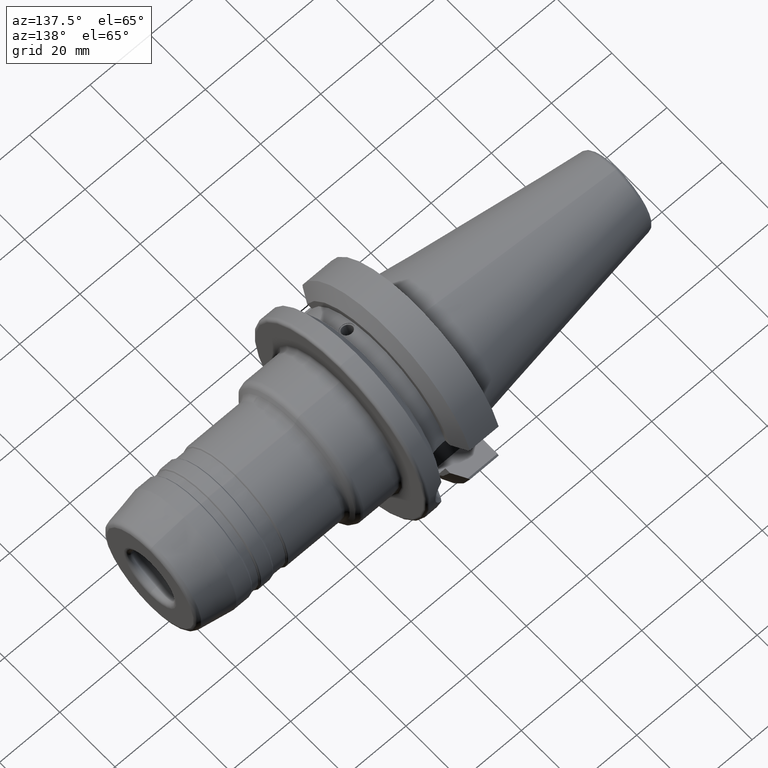
[diagram: clean part render]
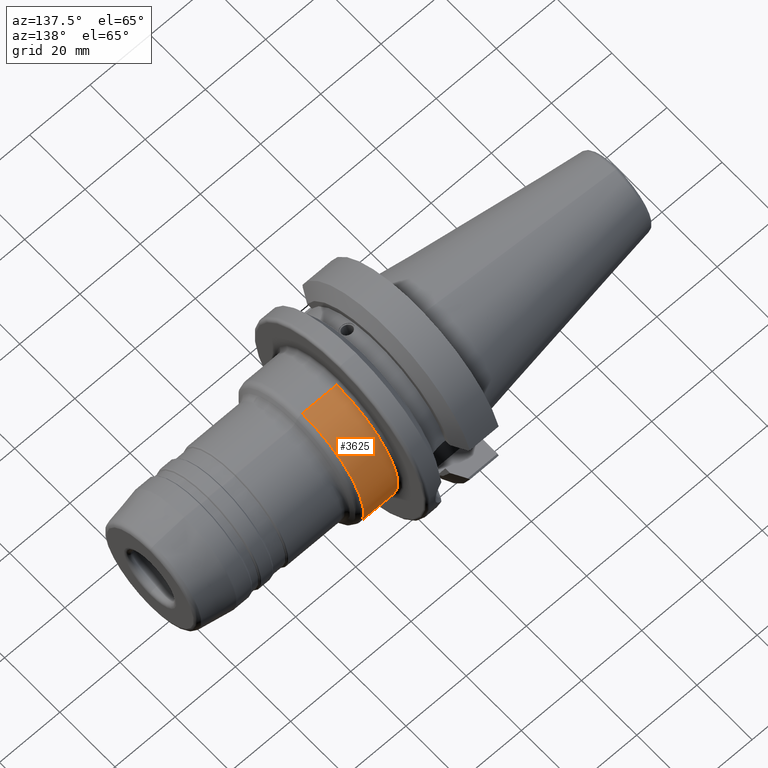
[diagram: same view with one face highlighted and labeled with its STEP entity id]
A machine part, auxiliary view. The second image highlights one B-rep face of the part: STEP entity #3625.
In plain terms, the highlighted cylindrical surface (partial cylindrical patch) has radius 22.25 mm, axis along (1, 0, 0).
Its self-contained STEP definition (entity closure, byte-faithful):
#817=CARTESIAN_POINT('',(2.8E1,0.E0,0.E0));
#818=DIRECTION('',(1.E0,0.E0,0.E0));
#819=DIRECTION('',(0.E0,0.E0,-1.E0));
#820=AXIS2_PLACEMENT_3D('',#817,#818,#819);
#822=CARTESIAN_POINT('',(3.946891108675E1,0.E0,0.E0));
#823=DIRECTION('',(1.E0,0.E0,0.E0));
#824=DIRECTION('',(0.E0,0.E0,-1.E0));
#825=AXIS2_PLACEMENT_3D('',#822,#823,#824);
#1982=DIRECTION('',(-1.E0,-1.241908783715E-12,0.E0));
#1983=VECTOR('',#1982,1.146891108675E1);
#1984=CARTESIAN_POINT('',(3.946891108675E1,0.E0,2.225E1));
#1985=LINE('',#1984,#1983);
#1991=DIRECTION('',(-1.E0,1.241845757405E-12,0.E0));
#1992=VECTOR('',#1991,1.146891108675E1);
#1993=CARTESIAN_POINT('',(3.946891108675E1,0.E0,-2.225E1));
#1994=LINE('',#1993,#1992);
#2293=CARTESIAN_POINT('',(3.946891108675E1,0.E0,-2.225E1));
#2294=VERTEX_POINT('',#2293);
#2353=CARTESIAN_POINT('',(3.946891108675E1,0.E0,2.225E1));
#2354=VERTEX_POINT('',#2353);
#2371=CARTESIAN_POINT('',(2.8E1,0.E0,2.225E1));
#2372=CARTESIAN_POINT('',(2.8E1,0.E0,-2.225E1));
#2373=VERTEX_POINT('',#2371);
#2374=VERTEX_POINT('',#2372);
#3611=CARTESIAN_POINT('',(0.E0,0.E0,0.E0));
#3612=DIRECTION('',(1.E0,0.E0,0.E0));
#3613=DIRECTION('',(0.E0,0.E0,1.E0));
#3614=AXIS2_PLACEMENT_3D('',#3611,#3612,#3613);
#3615=CYLINDRICAL_SURFACE('',#3614,2.225E1);
#3617=ORIENTED_EDGE('',*,*,#3616,.F.);
#3619=ORIENTED_EDGE('',*,*,#3618,.F.);
#3620=ORIENTED_EDGE('',*,*,#3606,.T.);
#3622=ORIENTED_EDGE('',*,*,#3621,.T.);
#3623=EDGE_LOOP('',(#3617,#3619,#3620,#3622));
#3624=FACE_OUTER_BOUND('',#3623,.F.);
#3625=ADVANCED_FACE('',(#3624),#3615,.T.);
#821=CIRCLE('',#820,2.225E1);
#826=CIRCLE('',#825,2.225E1);
#3606=EDGE_CURVE('',#2294,#2354,#826,.T.);
#3616=EDGE_CURVE('',#2374,#2373,#821,.T.);
#3618=EDGE_CURVE('',#2294,#2374,#1994,.T.);
#3621=EDGE_CURVE('',#2354,#2373,#1985,.T.);